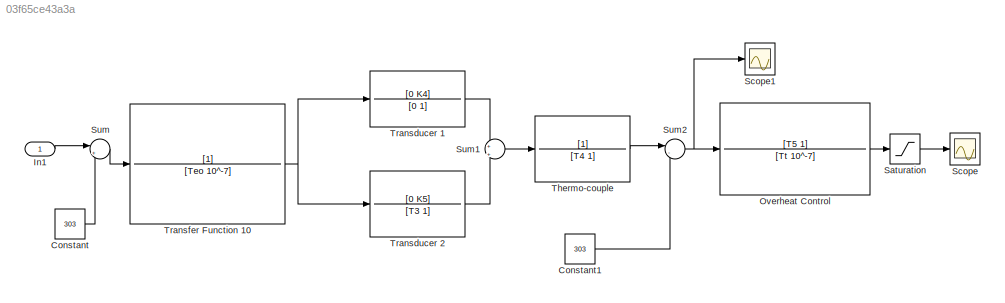
MODEL slx_03f65ce43a3a
KIND model
CONFIG AbsTol = auto
CONFIG EnableMultiTasking = off
CONFIG FixedStep = auto
CONFIG MaxStep = auto
CONFIG MinStep = auto
CONFIG RelTol = 1e-3
CONFIG SampleTimeConstraint = Unconstrained
CONFIG SolverName = VariableStepAuto
CONFIG StartTime = 0.0
CONFIG StopTime = 10.0
WORKSPACE source: mxarray member
WORKSPACE K4: Simulink.Parameter (value not decoded)
WORKSPACE K5: Simulink.Parameter (value not decoded)
WORKSPACE T3: Simulink.Parameter (value not decoded)
WORKSPACE T4: Simulink.Parameter (value not decoded)
WORKSPACE T5: Simulink.Parameter (value not decoded)
WORKSPACE Teo: Simulink.Parameter (value not decoded)
WORKSPACE Tt: Simulink.Parameter (value not decoded)
BLOCK [Constant] Constant
  Value = 303
BLOCK [Constant] Constant1
  Value = 303
BLOCK [Inport] In1
BLOCK [TransferFcn] Overheat Control
  Denominator = [Tt 10^-7]
  Numerator = [T5 1]
BLOCK [Saturate] Saturation
  UpperLimit = 350
BLOCK [Scope] Scope
  Floating = off
  NumInputPorts = 1
  Ports = [1]
  ScopeSpecificationString = Simulink.scopes.TimeScopeBlockCfg('CurrentConfiguration', extmgr.ConfigurationSet(extmgr.Configuration('Core','General UI',true),extmgr.Configuration('Core','Source UI',true),extmgr.Configuration('Sources','WiredSimulink',true),extmgr.Configuration('Visuals','Time Domain',true,'SerializedDisplays',{struct('MinYLimReal','250.00000','MaxYLimReal','450.00000','YLabelReal','','MinYLimMag','250.00000',...<+1373ch>
BLOCK [Scope] Scope1
  Floating = off
  NumInputPorts = 1
  Ports = [1]
  ScopeSpecificationString = Simulink.scopes.TimeScopeBlockCfg('CurrentConfiguration', extmgr.ConfigurationSet(extmgr.Configuration('Core','General UI',true),extmgr.Configuration('Core','Source UI',true),extmgr.Configuration('Sources','WiredSimulink',true,'DataLoggingVariableName','ScopeData1'),extmgr.Configuration('Visuals','Time Domain',true,'SerializedDisplays',{struct('MinYLimReal','303.65486','MaxYLimReal','303.92063','Y...<+1423ch>
BLOCK [Sum] Sum
  Inputs = |+-
  Ports = [2, 1]
BLOCK [Sum] Sum1
  Inputs = +|+
  Ports = [2, 1]
BLOCK [Sum] Sum2
  Inputs = |-+
  Ports = [2, 1]
BLOCK [TransferFcn] Thermo-couple
  Denominator = [T4 1]
BLOCK [TransferFcn] Transducer 1
  Denominator = [0 1]
  Numerator = [0 K4]
BLOCK [TransferFcn] Transducer 2
  Denominator = [T3 1]
  Numerator = [0 K5]
BLOCK [TransferFcn] Transfer Function 10
  Denominator = [Teo 10^-7]
LINE Constant1:1 -> Sum2:2
LINE Constant:1 -> Sum:2
LINE In1:1 -> Sum:1
LINE Overheat Control:1 -> Saturation:1
LINE Saturation:1 -> Scope:1
LINE Sum1:1 -> Thermo-couple:1
NET Sum2:1 -> Overheat Control:1, Scope1:1
LINE Sum:1 -> Transfer Function 10:1
LINE Thermo-couple:1 -> Sum2:1
LINE Transducer 1:1 -> Sum1:1
LINE Transducer 2:1 -> Sum1:2
NET Transfer Function 10:1 -> Transducer 1:1, Transducer 2:1
note: NET lines group one-source signal fan-out (src -> all destinations, sorted); 1:1 wires keep LINE
